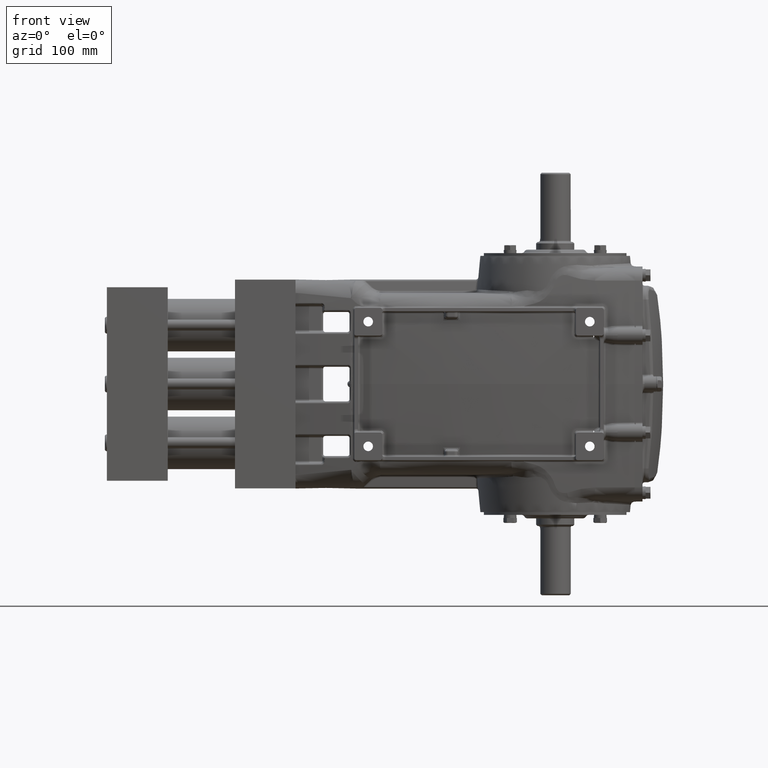
[diagram: clean part render]
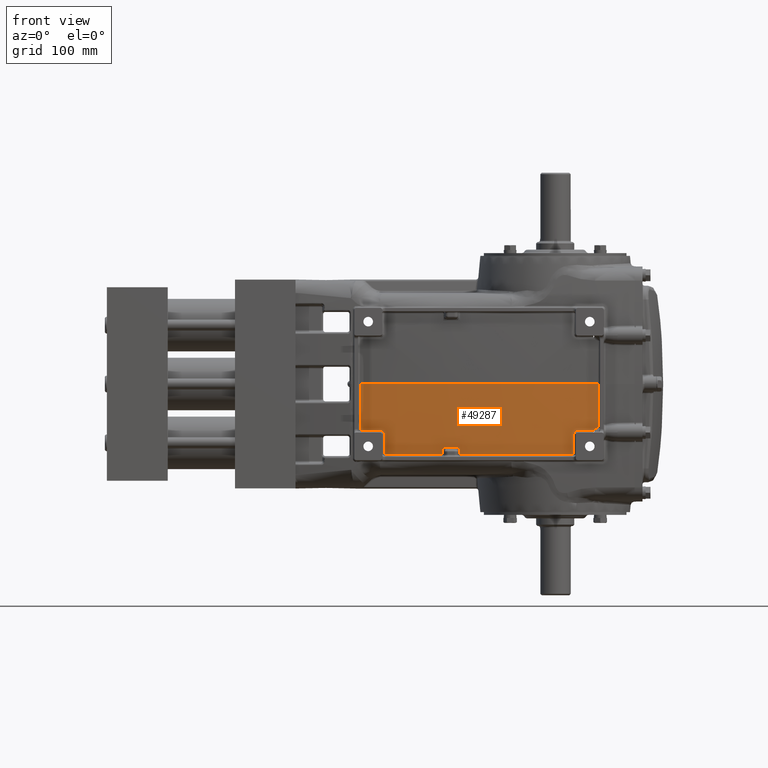
[diagram: same view with one face highlighted and labeled with its STEP entity id]
A machine part, front view. The second image highlights one B-rep face of the part: STEP entity #49287.
In plain terms, the highlighted face is a freeform B-spline surface patch.
Its self-contained STEP definition (entity closure, byte-faithful):
#25 = CARTESIAN_POINT ( 'NONE',  ( -15.30011397790427985, -11.44497907845690854, -9.795701932413749091 ) ) ;
#75 = VERTEX_POINT ( 'NONE', #16895 ) ;
#341 = CARTESIAN_POINT ( 'NONE',  ( -2.155851453469272538, -11.75350330850286085, -9.374461174855936108 ) ) ;
#613 = CARTESIAN_POINT ( 'NONE',  ( -5.734409042002613255, -12.40080583490211019, -2.691688546195931675 ) ) ;
#641 = CARTESIAN_POINT ( 'NONE',  ( -8.820698497350521805, -12.25508370766496924, -7.516246092718290583 ) ) ;
#1262 = CARTESIAN_POINT ( 'NONE',  ( -8.820698497350539569, -12.19028921542944666, -8.100683595711938523 ) ) ;
#1562 = CARTESIAN_POINT ( 'NONE',  ( -15.30011397790426209, -12.02828449493803653, -3.729488559111926893 ) ) ;
#1880 = CARTESIAN_POINT ( 'NONE',  ( -15.30011397790427985, -12.12481097944904285, -0.2832288182468694071 ) ) ;
#2195 = CARTESIAN_POINT ( 'NONE',  ( -2.349973212028919622, -12.23336137557311076, -4.639603684136446304 ) ) ;
#2498 = CARTESIAN_POINT ( 'NONE',  ( -2.220558706322482756, -12.10330371781391712, -6.244892509886193821 ) ) ;
#2820 = CARTESIAN_POINT ( 'NONE',  ( -8.820698497350555556, -12.62774570692185350, -1.964061495921458844 ) ) ;
#2878 = CARTESIAN_POINT ( 'NONE',  ( -5.578408351228389961, -12.40303184743050480, -2.633408173276915676 ) ) ;
#2935 = CARTESIAN_POINT ( 'NONE',  ( -4.657395821290998938, -12.39867769571685407, -2.586632401729381581 ) ) ;
#3014 = CARTESIAN_POINT ( 'NONE',  ( -17.58183735192217867, -11.49283733575563993, -2.633457776029218156 ) ) ;
#3410 = EDGE_CURVE ( 'NONE', #41082, #40689, #59980, .T. ) ;
#3811 = CARTESIAN_POINT ( 'NONE',  ( -16.71732369367113691, -11.61877150563516103, -2.657090287576964194 ) ) ;
#4116 = CARTESIAN_POINT ( 'NONE',  ( -16.74603318353143067, -11.61511174794887502, -2.645681255259437759 ) ) ;
#4394 = CARTESIAN_POINT ( 'NONE',  ( -5.814275709698907946, -12.33833289011516676, -4.009067684533873965 ) ) ;
#4726 = CARTESIAN_POINT ( 'NONE',  ( -16.60666011583654011, -11.63003688281277270, -2.771421394848510911 ) ) ;
#4908 = CARTESIAN_POINT ( 'NONE',  ( -2.155851453469277867, -12.37521014431466071, -0.2617201313986859956 ) ) ;
#5047 = CARTESIAN_POINT ( 'NONE',  ( -21.64131179470609467, -10.12996243561039300, -9.786800326190538968 ) ) ;
#5160 = VERTEX_POINT ( 'NONE', #17429 ) ;
#5359 = CARTESIAN_POINT ( 'NONE',  ( -21.64131179470613020, -10.35318565719905237, -8.030208900442749709 ) ) ;
#5644 = CARTESIAN_POINT ( 'NONE',  ( -5.675979143677897021, -12.40226191239490383, -2.654394645030111022 ) ) ;
#5646 = EDGE_CURVE ( 'NONE', #5160, #8734, #55219, .T. ) ;
#5676 = CARTESIAN_POINT ( 'NONE',  ( -2.220558706322502296, -11.91031965879874299, -8.136625690299220892 ) ) ;
#5728 = CARTESIAN_POINT ( 'NONE',  ( -15.48078178085614987, -11.72885088615122839, -4.009119313203882484 ) ) ;
#5959 = CARTESIAN_POINT ( 'NONE',  ( -5.654707048150501514, -12.40260100707920365, -2.645560017094310101 ) ) ;
#5984 = CARTESIAN_POINT ( 'NONE',  ( -2.349973212028927616, -12.05420217435858277, -6.832522365018273369 ) ) ;
#6296 = CARTESIAN_POINT ( 'NONE',  ( -2.220558706322473430, -12.17258246696452240, -5.413705272760017451 ) ) ;
#6606 = CARTESIAN_POINT ( 'NONE',  ( -2.155851453469282308, -12.37259855220085214, -0.7392324407370322037 ) ) ;
#6914 = CARTESIAN_POINT ( 'NONE',  ( -21.64131179470604849, -10.53882562471727802, -6.188065023527709485 ) ) ;
#7229 = CARTESIAN_POINT ( 'NONE',  ( -8.820698497350498712, -12.38079281970061984, -6.225699120453859869 ) ) ;
#7257 = CARTESIAN_POINT ( 'NONE',  ( -5.814275709698907946, -12.33833289011516676, -4.009067684533873965 ) ) ;
#7299 = CARTESIAN_POINT ( 'NONE',  ( -17.96140901744291085, -11.48162414815780785, 6.222606604880411818E-16 ) ) ;
#7426 = CARTESIAN_POINT ( 'NONE',  ( -17.96142184308066447, -11.43268835896925850, -2.633461050662142977 ) ) ;
#7539 = CARTESIAN_POINT ( 'NONE',  ( -2.285265959175719619, -12.35569060813966757, -1.924953776098369485 ) ) ;
#7773 = CARTESIAN_POINT ( 'NONE',  ( -16.58553356226408226, -11.62910905745565593, -2.869281754821064290 ) ) ;
#8280 = CARTESIAN_POINT ( 'NONE',  ( -4.698406014597475533, -12.39782582046681725, -2.623396351544327043 ) ) ;
#8524 = CARTESIAN_POINT ( 'NONE',  ( -16.58707027155464431, -11.63014708402498343, -2.838203157779700891 ) ) ;
#8611 = CARTESIAN_POINT ( 'NONE',  ( -13.26374593942000679, -11.98953872370508122, -3.616051193212727721 ) ) ;
#8734 = VERTEX_POINT ( 'NONE', #55537 ) ;
#8920 = B_SPLINE_CURVE_WITH_KNOTS ( 'NONE', 3,
 ( #26400, #50426, #26081, #20999 ),
 .UNSPECIFIED., .F., .F.,
 ( 4, 4 ),
 ( 0.000000000000000000, 1.000000000000000000 ),
 .UNSPECIFIED. ) ;
#9414 = B_SPLINE_CURVE_WITH_KNOTS ( 'NONE', 3,
 ( #14387, #46973, #57390, #13457 ),
 .UNSPECIFIED., .F., .F.,
 ( 4, 4 ),
 ( 0.000000000000000000, 0.02506584408557437776 ),
 .UNSPECIFIED. ) ;
#10390 = CARTESIAN_POINT ( 'NONE',  ( -5.808263771253985297, -12.39585561723757579, -2.815778172814599856 ) ) ;
#10415 = CARTESIAN_POINT ( 'NONE',  ( -15.30011397790427097, -11.72972334447101694, -7.482576476895471451 ) ) ;
#10558 = EDGE_CURVE ( 'NONE', #50474, #34545, #21426, .T. ) ;
#11027 = CARTESIAN_POINT ( 'NONE',  ( -2.285265959175703632, -11.75897061864652215, -9.374025331952717366 ) ) ;
#11310 = CARTESIAN_POINT ( 'NONE',  ( -5.578408351228389961, -12.40303184743050480, -2.633408173276915676 ) ) ;
#11337 = CARTESIAN_POINT ( 'NONE',  ( -2.220558706322497855, -12.37530055370917026, -0.7394822644501427567 ) ) ;
#11627 = CARTESIAN_POINT ( 'NONE',  ( -12.28096622908845958, -12.07895697645320077, -3.616044454389348850 ) ) ;
#11645 = CARTESIAN_POINT ( 'NONE',  ( -2.349973212028929392, -12.38070455672580295, -0.7399819118763637515 ) ) ;
#11968 = CARTESIAN_POINT ( 'NONE',  ( -2.285265959175712069, -12.05147202689562214, -6.832793557027403430 ) ) ;
#12284 = CARTESIAN_POINT ( 'NONE',  ( -21.64131179470606980, -10.65642422315710647, -4.668920579875790011 ) ) ;
#12437 = CARTESIAN_POINT ( 'NONE',  ( -16.58554113562181342, -11.59525901640059153, -3.629334840244932803 ) ) ;
#12580 = CARTESIAN_POINT ( 'NONE',  ( -12.28096813139740284, -12.06520829843644016, -3.878095849180120069 ) ) ;
#12599 = CARTESIAN_POINT ( 'NONE',  ( -21.64131179470601296, -10.80524153602839021, -0.8149290258095023276 ) ) ;
#12943 = CARTESIAN_POINT ( 'NONE',  ( -11.20500858982279979, -12.14332133350450604, -4.009084545783796472 ) ) ;
#13089 = ORIENTED_EDGE ( 'NONE', *, *, #18958, .T. ) ;
#13457 = CARTESIAN_POINT ( 'NONE',  ( -12.28096622908845958, -12.07895697645320077, -3.616044454389348850 ) ) ;
#13555 = CARTESIAN_POINT ( 'NONE',  ( -6.893765475275827725, -12.33591216973435323, -4.009068041970368590 ) ) ;
#14203 = CARTESIAN_POINT ( 'NONE',  ( -16.64415944417980597, -11.62701847969445446, -2.712919804652284661 ) ) ;
#14387 = CARTESIAN_POINT ( 'NONE',  ( -13.26374593942000679, -11.98953872370508122, -3.616051193212727721 ) ) ;
#14538 = CARTESIAN_POINT ( 'NONE',  ( -2.220558706322492970, -11.66227087428507758, -10.04577710926009182 ) ) ;
#14570 = ORIENTED_EDGE ( 'NONE', *, *, #17505, .T. ) ;
#14848 = CARTESIAN_POINT ( 'NONE',  ( -2.349973212028924507, -11.66767927644232117, -10.04577710926009182 ) ) ;
#14903 = CARTESIAN_POINT ( 'NONE',  ( -16.58554596764888700, -11.57374207269790034, -4.009132247748159017 ) ) ;
#15130 = CARTESIAN_POINT ( 'NONE',  ( -5.722547588352650649, -12.40118983010266440, -2.681924243328158042 ) ) ;
#15158 = CARTESIAN_POINT ( 'NONE',  ( -8.820698497350520029, -11.93809938430440987, -10.04577710926007583 ) ) ;
#15462 = CARTESIAN_POINT ( 'NONE',  ( -2.285265959175708961, -11.66497507536369937, -10.04577710926009182 ) ) ;
#15759 = CARTESIAN_POINT ( 'NONE',  ( -2.220558706322504516, -11.97561225462063383, -7.550589100857566294 ) ) ;
#15777 = EDGE_CURVE ( 'NONE', #31555, #17471, #26852, .T. ) ;
#16072 = CARTESIAN_POINT ( 'NONE',  ( -8.820698497350496936, -12.65090470755751717, -0.7649642831874112758 ) ) ;
#16388 = CARTESIAN_POINT ( 'NONE',  ( -2.285265959175710293, -12.33181225505272494, -2.708566069750672600 ) ) ;
#16536 = CARTESIAN_POINT ( 'NONE',  ( -4.438385039138968757, -12.40053363330852676, -2.449077410714803449 ) ) ;
#16545 = ORIENTED_EDGE ( 'NONE', *, *, #55576, .T. ) ;
#16692 = CARTESIAN_POINT ( 'NONE',  ( -2.155851453469272538, -12.22527011236534378, -4.639310515179054129 ) ) ;
#16895 = CARTESIAN_POINT ( 'NONE',  ( -13.26374593942000679, -11.98953872370508122, -3.616051193212727721 ) ) ;
#17010 = CARTESIAN_POINT ( 'NONE',  ( -2.349973212028936054, -12.35838422297909567, -1.925340981245132754 ) ) ;
#17040 = CARTESIAN_POINT ( 'NONE',  ( -5.814275331094473032, -12.39369679939118463, -2.869235462077895704 ) ) ;
#17085 = CARTESIAN_POINT ( 'NONE',  ( -17.96142184308066447, -11.43268835896925850, -2.633461050662142977 ) ) ;
#17325 = CARTESIAN_POINT ( 'NONE',  ( -2.349973212028934277, -12.37233524949535024, -1.271907088491667448 ) ) ;
#17429 = CARTESIAN_POINT ( 'NONE',  ( -12.28096916369352343, -12.05778752961060363, -4.009091750255389108 ) ) ;
#17471 = VERTEX_POINT ( 'NONE', #2878 ) ;
#17505 = EDGE_CURVE ( 'NONE', #34545, #55483, #44766, .T. ) ;
#17677 = EDGE_CURVE ( 'NONE', #42288, #5160, #22914, .T. ) ;
#17943 = CARTESIAN_POINT ( 'NONE',  ( -21.64131179470609112, -10.80851959794422434, 1.301789904605454270E-14 ) ) ;
#18000 = CARTESIAN_POINT ( 'NONE',  ( -16.76821817530811387, -11.61218166748404634, -2.639396831441880309 ) ) ;
#18053 = CARTESIAN_POINT ( 'NONE',  ( -4.487237362532711771, -12.40042177839999660, -2.473840061928064937 ) ) ;
#18599 = CARTESIAN_POINT ( 'NONE',  ( -16.58553342115533269, -11.62974180661300849, -2.853661428704625802 ) ) ;
#18913 = CARTESIAN_POINT ( 'NONE',  ( -16.66599718982151757, -11.62476096469725206, -2.691205871054131116 ) ) ;
#18958 = EDGE_CURVE ( 'NONE', #40689, #28556, #52261, .T. ) ;
#19236 = CARTESIAN_POINT ( 'NONE',  ( -15.30011397790424788, -11.50908330425855830, -9.330223120179205409 ) ) ;
#19529 = CARTESIAN_POINT ( 'NONE',  ( -5.790421869757397921, -12.39790369134867909, -2.764743968394221429 ) ) ;
#19557 = CARTESIAN_POINT ( 'NONE',  ( -2.285265959175709405, -11.83524800141881528, -8.780550963363717543 ) ) ;
#19607 = CARTESIAN_POINT ( 'NONE',  ( -13.26374929207214493, -11.96836890269487164, -4.009099260313161217 ) ) ;
#19677 = ORIENTED_EDGE ( 'NONE', *, *, #48368, .T. ) ;
#20183 = CARTESIAN_POINT ( 'NONE',  ( -2.155851453469288526, -11.97287233841431586, -7.550925797015794139 ) ) ;
#20498 = CARTESIAN_POINT ( 'NONE',  ( -21.64131179470607336, -10.41700347573581453, -7.448906861072648766 ) ) ;
#20540 = ORIENTED_EDGE ( 'NONE', *, *, #44395, .T. ) ;
#20802 = CARTESIAN_POINT ( 'NONE',  ( -2.349973212028914293, -12.10874468059600773, -6.244516168916932841 ) ) ;
#20999 = CARTESIAN_POINT ( 'NONE',  ( -4.438386436175663086, -12.44285824087143766, 8.307133097801747765E-16 ) ) ;
#21118 = CARTESIAN_POINT ( 'NONE',  ( -8.820698497350520029, -12.65374285541260768, -0.2726334060063855813 ) ) ;
#21426 = B_SPLINE_CURVE_WITH_KNOTS ( 'NONE', 3,
 ( #7426, #3014, #54863, #50430 ),
 .UNSPECIFIED., .F., .F.,
 ( 4, 4 ),
 ( 0.000000000000000000, 0.02928519298519093386 ),
 .UNSPECIFIED. ) ;
#21441 = CARTESIAN_POINT ( 'NONE',  ( -2.220558706322496079, -12.04874187943266328, -6.833064749036533492 ) ) ;
#21746 = CARTESIAN_POINT ( 'NONE',  ( -8.820698497350566214, -12.60340878282694277, -2.746519947525800642 ) ) ;
#21820 = CARTESIAN_POINT ( 'NONE',  ( -17.96141371060206282, -11.46531234447554404, -1.756019466418914821 ) ) ;
#22067 = CARTESIAN_POINT ( 'NONE',  ( -21.64131179470608757, -10.79570752683036616, -1.371080488539591968 ) ) ;
#22385 = CARTESIAN_POINT ( 'NONE',  ( -2.220558706322493414, -12.37791434539328073, -0.2618260855210908233 ) ) ;
#22914 = B_SPLINE_CURVE_WITH_KNOTS ( 'NONE', 3,
 ( #11627, #54958, #12580, #40401 ),
 .UNSPECIFIED., .F., .F.,
 ( 4, 4 ),
 ( 6.938893903907228378E-17, 0.009997877322231157188 ),
 .UNSPECIFIED. ) ;
#23038 = ORIENTED_EDGE ( 'NONE', *, *, #55249, .T. ) ;
#23340 = CARTESIAN_POINT ( 'NONE',  ( -10.12796075864818945, -12.21224781643305057, -4.009078708508508448 ) ) ;
#23370 = CARTESIAN_POINT ( 'NONE',  ( -16.62135692056476799, -11.62903192171308930, -2.744094817158740263 ) ) ;
#23735 = VERTEX_POINT ( 'NONE', #30367 ) ;
#23740 = CARTESIAN_POINT ( 'NONE',  ( -16.82139843863660644, -11.60479057090567068, -2.633451682630481017 ) ) ;
#23988 = CARTESIAN_POINT ( 'NONE',  ( -16.60997338760573783, -11.62984299591370529, -2.764453734349010539 ) ) ;
#24097 = ORIENTED_EDGE ( 'NONE', *, *, #15777, .T. ) ;
#24319 = CARTESIAN_POINT ( 'NONE',  ( -2.155851453469275647, -11.69279052384617046, -9.813772193046863990 ) ) ;
#24630 = CARTESIAN_POINT ( 'NONE',  ( -15.30011397790431005, -11.66541718908487546, -8.065446248077345004 ) ) ;
#24940 = CARTESIAN_POINT ( 'NONE',  ( -2.349973212028936054, -11.98109208703326800, -7.549915708541110604 ) ) ;
#25121 = CARTESIAN_POINT ( 'NONE',  ( -17.96142184308066447, -11.43268835896925850, -2.633461050662142977 ) ) ;
#25543 = CARTESIAN_POINT ( 'NONE',  ( -5.814275331094473032, -12.39369679939118463, -2.869235462077895704 ) ) ;
#25573 = CARTESIAN_POINT ( 'NONE',  ( -2.155851453469246781, -12.28152835788367447, -3.677257184034957049 ) ) ;
#25883 = CARTESIAN_POINT ( 'NONE',  ( -21.64131179470609112, -10.80851959794422434, -0.2938242304873521227 ) ) ;
#26081 = CARTESIAN_POINT ( 'NONE',  ( -8.966321366949120630, -12.51183558701017517, 2.505936219533671247E-14 ) ) ;
#26201 = CARTESIAN_POINT ( 'NONE',  ( -8.820698497350509371, -12.50307014916529447, -4.649375982716229316 ) ) ;
#26400 = CARTESIAN_POINT ( 'NONE',  ( -17.96140901744291085, -11.48162414815780785, 6.222606604880411818E-16 ) ) ;
#26525 = CARTESIAN_POINT ( 'NONE',  ( -15.30011397790427097, -11.92010205185752270, -5.404061326588741387 ) ) ;
#26831 = CARTESIAN_POINT ( 'NONE',  ( -2.220558706322503184, -12.35299699330023948, -1.924566570951606215 ) ) ;
#26852 = B_SPLINE_CURVE_WITH_KNOTS ( 'NONE', 3,
 ( #25543, #29357, #39440, #10390, #38823, #35020, #29675, #19529, #44530, #35328, #29975, #613, #15130, #59381, #54624, #53391, #5644, #5959, #34408, #58143, #48967, #11310 ),
 .UNSPECIFIED., .F., .F.,
 ( 4, 2, 2, 2, 2, 2, 2, 2, 2, 2, 4 ),
 ( 0.000000000000000000, 0.001170230795047751127, 0.001755346192571635797, 0.002340461590095520468, 0.003510692385143295881, 0.004680923180191071294, 0.005851153975238845839, 0.006436269372762768240, 0.007021384770286690641, 0.008191615565334531973, 0.009361846360382375040 ),
 .UNSPECIFIED. ) ;
#27219 = EDGE_CURVE ( 'NONE', #17471, #41082, #37804, .T. ) ;
#27577 = CARTESIAN_POINT ( 'NONE',  ( -4.667917380158449703, -12.39848702573900141, -2.595409234286697675 ) ) ;
#27607 = CARTESIAN_POINT ( 'NONE',  ( -16.58553699591125863, -11.61371215737062457, -3.249376453830433942 ) ) ;
#27817 = CARTESIAN_POINT ( 'NONE',  ( -16.80592831836296241, -11.60701028592554351, -2.633451561824138309 ) ) ;
#28556 = VERTEX_POINT ( 'NONE', #46772 ) ;
#28924 = CARTESIAN_POINT ( 'NONE',  ( -2.349973212028924507, -12.38332274755052431, -5.900791666314808552E-15 ) ) ;
#29357 = CARTESIAN_POINT ( 'NONE',  ( -5.814275326496233021, -12.39432730961419438, -2.853669760522055565 ) ) ;
#29386 = CARTESIAN_POINT ( 'NONE',  ( -2.349973212028925396, -11.83799083888007253, -8.780241008971938044 ) ) ;
#29675 = CARTESIAN_POINT ( 'NONE',  ( -5.799287238907021802, -12.39704604148862899, -2.786150692338192680 ) ) ;
#29966 = B_SPLINE_CURVE_WITH_KNOTS ( 'NONE', 3,
 ( #14903, #5728, #39209, #19607 ),
 .UNSPECIFIED., .F., .F.,
 ( 4, 4 ),
 ( 0.000000000000000000, 0.08500869428581230014 ),
 .UNSPECIFIED. ) ;
#29975 = CARTESIAN_POINT ( 'NONE',  ( -5.756147419824959144, -12.39994610543636178, -2.713445904319685464 ) ) ;
#30003 = CARTESIAN_POINT ( 'NONE',  ( -8.820698497350536016, -12.11227458500572318, -8.749245569794030786 ) ) ;
#30300 = CARTESIAN_POINT ( 'NONE',  ( -2.285265959175718731, -11.91306445837355277, -8.136273316822876467 ) ) ;
#30367 = CARTESIAN_POINT ( 'NONE',  ( -16.58554596764888700, -11.57374207269790034, -4.009132247748159017 ) ) ;
#30613 = CARTESIAN_POINT ( 'NONE',  ( -2.285265959175718731, -12.36963713032692347, -1.271576510491507550 ) ) ;
#30930 = CARTESIAN_POINT ( 'NONE',  ( -2.285265959175709405, -12.38061854647190074, -0.2619320396434957066 ) ) ;
#31243 = CARTESIAN_POINT ( 'NONE',  ( -8.820698497350505818, -12.44872553631750378, -5.408835557366600710 ) ) ;
#31245 = B_SPLINE_CURVE_WITH_KNOTS ( 'NONE', 3,
 ( #47515, #60817, #37087, #8611 ),
 .UNSPECIFIED., .F., .F.,
 ( 4, 4 ),
 ( 1.942890293094023699E-16, 0.009997897390823021896 ),
 .UNSPECIFIED. ) ;
#31555 = VERTEX_POINT ( 'NONE', #41433 ) ;
#31563 = CARTESIAN_POINT ( 'NONE',  ( -2.220558706322462328, -12.28421854567126026, -3.677514481449129846 ) ) ;
#31829 = VERTEX_POINT ( 'NONE', #40416 ) ;
#31873 = CARTESIAN_POINT ( 'NONE',  ( -15.30011397790427985, -12.11260709935474900, -1.338022688523618386 ) ) ;
#31961 = CARTESIAN_POINT ( 'NONE',  ( -5.578408351228389961, -12.40303184743050480, -2.633408173276915676 ) ) ;
#32305 = CARTESIAN_POINT ( 'NONE',  ( -4.707826274591061733, -12.39756490727142690, -2.633408445068508463 ) ) ;
#32559 = CARTESIAN_POINT ( 'NONE',  ( -16.73869373910920189, -11.61605976961182307, -2.648289797643024190 ) ) ;
#33074 = CARTESIAN_POINT ( 'NONE',  ( -5.814275443375847452, -12.37830078665801103, -3.249324048445274560 ) ) ;
#33485 = CARTESIAN_POINT ( 'NONE',  ( -16.61730883142423210, -11.62934166807160707, -2.750807953098193703 ) ) ;
#33527 = ORIENTED_EDGE ( 'NONE', *, *, #51976, .T. ) ;
#33550 = ORIENTED_EDGE ( 'NONE', *, *, #43081, .F. ) ;
#33815 = CARTESIAN_POINT ( 'NONE',  ( -2.155851453469277423, -11.65956667320645757, -10.04577710926009182 ) ) ;
#33974 = CARTESIAN_POINT ( 'NONE',  ( -8.820698497350520029, -12.65374285541260768, -7.613123643899153952E-16 ) ) ;
#34126 = FACE_OUTER_BOUND ( 'NONE', #34390, .T. ) ;
#34390 = EDGE_LOOP ( 'NONE', ( #20540, #23038, #16545, #39571, #39753, #19677, #24097, #57899, #61091, #13089, #33550, #43270, #55189, #14570, #33527 ) ) ;
#34408 = CARTESIAN_POINT ( 'NONE',  ( -5.639878613856398992, -12.40277194567973496, -2.641027938767021688 ) ) ;
#34438 = CARTESIAN_POINT ( 'NONE',  ( -2.220558706322488085, -11.75623696357469150, -9.374243253404326737 ) ) ;
#34545 = VERTEX_POINT ( 'NONE', #23740 ) ;
#35020 = CARTESIAN_POINT ( 'NONE',  ( -5.801918162642100363, -12.39675080416057895, -2.793509117844862999 ) ) ;
#35044 = CARTESIAN_POINT ( 'NONE',  ( -8.820698497350502265, -12.03506978090127966, -9.352015265340156702 ) ) ;
#35328 = CARTESIAN_POINT ( 'NONE',  ( -5.766097440635924443, -12.39946465264702802, -2.725582099047809237 ) ) ;
#35356 = CARTESIAN_POINT ( 'NONE',  ( -2.285265959175713846, -12.37800255521748838, -0.7397320881632531986 ) ) ;
#35673 = CARTESIAN_POINT ( 'NONE',  ( -15.30011397790433669, -12.09775520703895602, -2.002782010597783824 ) ) ;
#35991 = CARTESIAN_POINT ( 'NONE',  ( -21.64131179470607691, -10.71059178432975934, -3.755218300529151954 ) ) ;
#36301 = CARTESIAN_POINT ( 'NONE',  ( -2.285265959175698303, -12.10602419920496331, -6.244704339401563331 ) ) ;
#36454 = CARTESIAN_POINT ( 'NONE',  ( -16.58553356226408226, -11.62910905745565593, -2.869281754821064290 ) ) ;
#36620 = CARTESIAN_POINT ( 'NONE',  ( -2.220558706322502740, -12.36693901115850025, -1.271245932491347874 ) ) ;
#37001 = EDGE_CURVE ( 'NONE', #31829, #50474, #56284, .T. ) ;
#37087 = CARTESIAN_POINT ( 'NONE',  ( -13.26374699722012451, -11.98284635525563324, -3.747086590047644883 ) ) ;
#37302 = CARTESIAN_POINT ( 'NONE',  ( -16.76078263783536215, -11.61317424119429731, -2.641241897834022634 ) ) ;
#37357 = CARTESIAN_POINT ( 'NONE',  ( -4.438385039138968757, -12.40053363330852676, -2.449077410714803449 ) ) ;
#37578 = CARTESIAN_POINT ( 'NONE',  ( -12.28096916369352343, -12.05778752961060363, -4.009091750255389108 ) ) ;
#37804 = B_SPLINE_CURVE_WITH_KNOTS ( 'NONE', 3,
 ( #31961, #46208, #55060, #41446 ),
 .UNSPECIFIED., .F., .F.,
 ( 4, 4 ),
 ( 0.000000000000000000, 0.02211340015105577039 ),
 .UNSPECIFIED. ) ;
#37900 = CARTESIAN_POINT ( 'NONE',  ( -16.58553356226408226, -11.62910905745565593, -2.869281754821064290 ) ) ;
#38217 = CARTESIAN_POINT ( 'NONE',  ( -16.63435396197776583, -11.62794701211789850, -2.724775699095787207 ) ) ;
#38400 = CARTESIAN_POINT ( 'NONE',  ( -2.285265959175708961, -12.38061854647190074, -5.952186459334057860E-15 ) ) ;
#38543 = CARTESIAN_POINT ( 'NONE',  ( -21.64131179470604138, -10.48718294005363916, -6.751164762279253218 ) ) ;
#38823 = CARTESIAN_POINT ( 'NONE',  ( -5.806399968551174240, -12.39615600936120821, -2.808312386648814218 ) ) ;
#38848 = CARTESIAN_POINT ( 'NONE',  ( -2.285265959175707184, -11.69822442077657776, -9.813594160922399112 ) ) ;
#39209 = CARTESIAN_POINT ( 'NONE',  ( -14.37350051582423838, -11.86038197658812088, -4.009108318091922918 ) ) ;
#39440 = CARTESIAN_POINT ( 'NONE',  ( -5.812749071361796638, -12.39494563075574618, -2.838363699798844841 ) ) ;
#39470 = CARTESIAN_POINT ( 'NONE',  ( -15.30011397790424610, -11.80087968312467339, -6.778283963192261119 ) ) ;
#39571 = ORIENTED_EDGE ( 'NONE', *, *, #17677, .T. ) ;
#39753 = ORIENTED_EDGE ( 'NONE', *, *, #5646, .T. ) ;
#39777 = CARTESIAN_POINT ( 'NONE',  ( -8.820698497350520029, -11.97263621576217041, -9.804603538636959215 ) ) ;
#40094 = CARTESIAN_POINT ( 'NONE',  ( -2.349973212028926728, -12.33450132958514445, -2.708941850718743272 ) ) ;
#40251 = CARTESIAN_POINT ( 'NONE',  ( -4.438386436175663974, -12.44285824087143588, -0.8165376980095109261 ) ) ;
#40401 = CARTESIAN_POINT ( 'NONE',  ( -12.28096916369352343, -12.05778752961060363, -4.009091750255389108 ) ) ;
#40416 = CARTESIAN_POINT ( 'NONE',  ( -17.96140901744291085, -11.48162414815780785, 6.222606604880411818E-16 ) ) ;
#40420 = CARTESIAN_POINT ( 'NONE',  ( -2.155851453469280532, -12.04601173196970620, -6.833335941045664441 ) ) ;
#40689 = VERTEX_POINT ( 'NONE', #62003 ) ;
#40726 = CARTESIAN_POINT ( 'NONE',  ( -2.285265959175703632, -12.23066428783718962, -4.639505961150648616 ) ) ;
#41042 = CARTESIAN_POINT ( 'NONE',  ( -2.155851453469266765, -12.10058323642286915, -6.245080680370824311 ) ) ;
#41082 = VERTEX_POINT ( 'NONE', #59912 ) ;
#41356 = CARTESIAN_POINT ( 'NONE',  ( -2.349973212028893865, -12.28959892124643360, -3.678029076277474552 ) ) ;
#41433 = CARTESIAN_POINT ( 'NONE',  ( -5.814275331094473032, -12.39369679939118463, -2.869235462077895704 ) ) ;
#41446 = CARTESIAN_POINT ( 'NONE',  ( -4.707826274591061733, -12.39756490727142690, -2.633408445068508463 ) ) ;
#42111 = CARTESIAN_POINT ( 'NONE',  ( -4.625232652272933009, -12.39919776025088716, -2.561217022510075658 ) ) ;
#42288 = VERTEX_POINT ( 'NONE', #59303 ) ;
#42736 = CARTESIAN_POINT ( 'NONE',  ( -4.688421036353138227, -12.39806121695164443, -2.613787791955301643 ) ) ;
#42949 = CARTESIAN_POINT ( 'NONE',  ( -11.74334290212451570, -12.10330869230441131, -4.009087921353007289 ) ) ;
#43081 = EDGE_CURVE ( 'NONE', #31829, #28556, #8920, .T. ) ;
#43167 = CARTESIAN_POINT ( 'NONE',  ( -15.30011397790427985, -12.12481097944904285, 5.544917873066535615E-15 ) ) ;
#43270 = ORIENTED_EDGE ( 'NONE', *, *, #37001, .T. ) ;
#43293 = CARTESIAN_POINT ( 'NONE',  ( -16.59320682775397060, -11.63050438767729844, -2.807609554183102762 ) ) ;
#43622 = CARTESIAN_POINT ( 'NONE',  ( -2.349973212028919622, -11.76170427371835103, -9.373807410501107995 ) ) ;
#43926 = CARTESIAN_POINT ( 'NONE',  ( -2.155851453469285861, -11.90757485922393144, -8.136978063775567094 ) ) ;
#44246 = CARTESIAN_POINT ( 'NONE',  ( -2.285265959175720063, -11.97835217082695181, -7.550252404699338449 ) ) ;
#44395 = EDGE_CURVE ( 'NONE', #23735, #61988, #29966, .T. ) ;
#44530 = CARTESIAN_POINT ( 'NONE',  ( -5.783188086505949066, -12.39844442741665098, -2.751205790464349654 ) ) ;
#44766 = B_SPLINE_CURVE_WITH_KNOTS ( 'NONE', 3,
 ( #56602, #27817, #48032, #18000, #37302, #4116, #32559, #3811, #52777, #61954, #18913, #14203, #38217, #23370, #33485, #23988, #4726, #51856, #43293, #8524, #18599, #37900 ),
 .UNSPECIFIED., .F., .F.,
 ( 4, 2, 2, 2, 2, 2, 2, 2, 2, 2, 4 ),
 ( 0.000000000000000000, 0.001174131697665231925, 0.001761197546497843876, 0.002348263395330456044, 0.003522395092995663900, 0.004696526790660872190, 0.005870658488326081781, 0.006457724337158680938, 0.007044790185991280963, 0.008218921883656481880, 0.009393053581321681930 ),
 .UNSPECIFIED. ) ;
#44873 = CARTESIAN_POINT ( 'NONE',  ( -15.30011397790436867, -12.07296425224308933, -2.784098044332857125 ) ) ;
#45178 = CARTESIAN_POINT ( 'NONE',  ( -2.285265959175688977, -12.17528975195817686, -5.413657530452238298 ) ) ;
#45492 = CARTESIAN_POINT ( 'NONE',  ( -21.64131179470622612, -10.75516021611798045, -2.821676141139911831 ) ) ;
#45806 = CARTESIAN_POINT ( 'NONE',  ( -15.30011397790426209, -11.97342693893182819, -4.659148281296010552 ) ) ;
#45872 = CARTESIAN_POINT ( 'NONE',  ( -17.96140901744291085, -11.48162414815781140, -0.8780478353440256400 ) ) ;
#46119 = CARTESIAN_POINT ( 'NONE',  ( -2.155851453469287193, -12.35030337846081316, -1.924179365804842945 ) ) ;
#46208 = CARTESIAN_POINT ( 'NONE',  ( -5.288206004963432072, -12.40281379970168985, -2.633408177355273327 ) ) ;
#46772 = CARTESIAN_POINT ( 'NONE',  ( -4.438386436175663086, -12.44285824087143766, 8.307133097801747765E-16 ) ) ;
#46973 = CARTESIAN_POINT ( 'NONE',  ( -12.93634269212559218, -12.02139732818265294, -3.616048795176231678 ) ) ;
#47515 = CARTESIAN_POINT ( 'NONE',  ( -13.26374929207214493, -11.96836890269487164, -4.009099260313161217 ) ) ;
#48032 = CARTESIAN_POINT ( 'NONE',  ( -16.79070284448851069, -11.60913421741140006, -2.634958507792322990 ) ) ;
#48368 = EDGE_CURVE ( 'NONE', #8734, #31555, #48489, .T. ) ;
#48489 = B_SPLINE_CURVE_WITH_KNOTS ( 'NONE', 3,
 ( #7257, #52045, #33074, #17040 ),
 .UNSPECIFIED., .F., .F.,
 ( 4, 4 ),
 ( 1.387778780781445676E-17, 0.02898646123601396341 ),
 .UNSPECIFIED. ) ;
#48687 = CARTESIAN_POINT ( 'NONE',  ( -2.220558706322492970, -11.83250516395756158, -8.780860917755495265 ) ) ;
#48967 = CARTESIAN_POINT ( 'NONE',  ( -5.593987099549387665, -12.40304355274830250, -2.633408173057983692 ) ) ;
#49287 = ADVANCED_FACE ( 'NONE', ( #34126 ), #52482, .F. ) ;
#49305 = CARTESIAN_POINT ( 'NONE',  ( -8.820698497350505818, -12.32721692065445218, -6.805403164105268132 ) ) ;
#49667 = CARTESIAN_POINT ( 'NONE',  ( -13.26374929207214493, -11.96836890269487164, -4.009099260313161217 ) ) ;
#49918 = CARTESIAN_POINT ( 'NONE',  ( -8.820698497350495160, -12.55861770000506183, -3.703758817694700944 ) ) ;
#50232 = CARTESIAN_POINT ( 'NONE',  ( -21.64131179470608757, -10.60411906185628617, -5.399287095810881176 ) ) ;
#50426 = CARTESIAN_POINT ( 'NONE',  ( -13.49077321613305003, -12.19005461824755265, 2.138533143211187579E-14 ) ) ;
#50430 = CARTESIAN_POINT ( 'NONE',  ( -16.82139843863660644, -11.60479057090567068, -2.633451682630481017 ) ) ;
#50474 = VERTEX_POINT ( 'NONE', #25121 ) ;
#50546 = CARTESIAN_POINT ( 'NONE',  ( -2.349973212028904967, -12.17799703695183311, -5.413609788144460033 ) ) ;
#50866 = CARTESIAN_POINT ( 'NONE',  ( -2.155851453469277867, -12.32643410598789124, -2.707814507814531257 ) ) ;
#51177 = CARTESIAN_POINT ( 'NONE',  ( -2.220558706322492970, -12.37791434539328073, -6.003581252353306379E-15 ) ) ;
#51856 = CARTESIAN_POINT ( 'NONE',  ( -16.59776613208828522, -11.63045098770262520, -2.792751531202443793 ) ) ;
#51910 = CARTESIAN_POINT ( 'NONE',  ( -4.534767836002266073, -12.40016163511003100, -2.500623379743935892 ) ) ;
#51976 = EDGE_CURVE ( 'NONE', #55483, #23735, #58845, .T. ) ;
#52045 = CARTESIAN_POINT ( 'NONE',  ( -5.814275575268174734, -12.35984848745556874, -3.629276353741744732 ) ) ;
#52261 = B_SPLINE_CURVE_WITH_KNOTS ( 'NONE', 3,
 ( #16536, #59556, #40251, #60506 ),
 .UNSPECIFIED., .F., .F.,
 ( 4, 4 ),
 ( 0.000000000000000000, 0.06222008268736683306 ),
 .UNSPECIFIED. ) ;
#52482 = B_SPLINE_SURFACE_WITH_KNOTS ( 'NONE', 3, 3, ( 
 ( #54342, #58472, #15158, #14848, #15462, #14538, #33815 ),
 ( #5047, #25, #39777, #53419, #38848, #53105, #24319 ),
 ( #58170, #19236, #35044, #43622, #11027, #34438, #341 ),
 ( #53726, #54027, #30003, #29386, #19557, #48687, #59085 ),
 ( #5359, #24630, #1262, #57859, #30300, #5676, #43926 ),
 ( #20498, #10415, #641, #24940, #44246, #15759, #20183 ),
 ( #38543, #39470, #49305, #5984, #11968, #21441, #40420 ),
 ( #6914, #55295, #7229, #20802, #36301, #2498, #41042 ),
 ( #50232, #26525, #31243, #50546, #45178, #6296, #55604 ),
 ( #12284, #45806, #26201, #2195, #40726, #60032, #16692 ),
 ( #35991, #1562, #49918, #41356, #59722, #31563, #25573 ),
 ( #45492, #44873, #21746, #40094, #16388, #54651, #50866 ),
 ( #60350, #35673, #2820, #17010, #7539, #26831, #46119 ),
 ( #22067, #31873, #60662, #17325, #30613, #36620, #55922 ),
 ( #12599, #59407, #16072, #11645, #35356, #11337, #6606 ),
 ( #25883, #1880, #21118, #54975, #30930, #22385, #4908 ),
 ( #17943, #43167, #33974, #28924, #38400, #51177, #52650 ) ),
 .UNSPECIFIED., .F., .F., .F.,
 ( 4, 1, 1, 1, 1, 1, 1, 1, 1, 1, 1, 1, 1, 1, 4 ),
 ( 4, 3, 4 ),
 ( 0.6416899016319266291, 0.6680709144412995126, 0.6910511929030633826, 0.7070270417424607823, 0.7380269954074184513, 0.7537315596691966935, 0.7829012457735833319, 0.7996549019161131033, 0.8403417066807266078, 0.8632468234832121334, 0.8997714546634835164, 0.9419247260028263957, 0.9467756368356592400, 0.9704551915184829181, 1.000000000000000000 ),
 ( 0.000000000000000000, 1.000000000000000000, 1.010000000000000009 ),
 .UNSPECIFIED. ) ;
#52650 = CARTESIAN_POINT ( 'NONE',  ( -2.155851453469277423, -12.37521014431466071, -6.054976045372554899E-15 ) ) ;
#52777 = CARTESIAN_POINT ( 'NONE',  ( -16.70379509981516364, -11.62042301508500408, -2.664278630473034148 ) ) ;
#53105 = CARTESIAN_POINT ( 'NONE',  ( -2.220558706322491194, -11.69550747231137322, -9.813683176984632439 ) ) ;
#53391 = CARTESIAN_POINT ( 'NONE',  ( -5.682927753359806822, -12.40213485307880781, -2.657685429304641911 ) ) ;
#53419 = CARTESIAN_POINT ( 'NONE',  ( -2.349973212028922731, -11.70094136924178230, -9.813505144860167562 ) ) ;
#53726 = CARTESIAN_POINT ( 'NONE',  ( -21.64131179470613020, -10.27477860406447085, -8.687254691438219822 ) ) ;
#54027 = CARTESIAN_POINT ( 'NONE',  ( -15.30011397790430827, -11.58720634730572385, -8.718250130616125304 ) ) ;
#54342 = CARTESIAN_POINT ( 'NONE',  ( -21.64131179470609112, -10.09287612683603008, -10.04577710926004208 ) ) ;
#54624 = CARTESIAN_POINT ( 'NONE',  ( -5.696536338848173564, -12.40185220982645298, -2.664969661778525900 ) ) ;
#54651 = CARTESIAN_POINT ( 'NONE',  ( -2.220558706322494302, -12.32912318052030720, -2.708190288782601929 ) ) ;
#54863 = CARTESIAN_POINT ( 'NONE',  ( -17.20182291393424023, -11.55020573854455357, -2.633454653369547316 ) ) ;
#54958 = CARTESIAN_POINT ( 'NONE',  ( -12.28096715480223011, -12.07226474029979357, -3.747079594199890451 ) ) ;
#54975 = CARTESIAN_POINT ( 'NONE',  ( -2.349973212028924952, -12.38332274755052431, -0.2620379937659005343 ) ) ;
#55060 = CARTESIAN_POINT ( 'NONE',  ( -4.998008472576798589, -12.40099146455934864, -2.633408267973377459 ) ) ;
#55189 = ORIENTED_EDGE ( 'NONE', *, *, #10558, .T. ) ;
#55219 = B_SPLINE_CURVE_WITH_KNOTS ( 'NONE', 3,
 ( #37578, #42949, #12943, #23340, #56266, #61930, #13555, #4394 ),
 .UNSPECIFIED., .F., .F.,
 ( 4, 2, 2, 4 ),
 ( 0.1100862934247376496, 0.1512149560370461276, 0.1923436186493545919, 0.2746009438739716035 ),
 .UNSPECIFIED. ) ;
#55249 = EDGE_CURVE ( 'NONE', #61988, #75, #31245, .T. ) ;
#55295 = CARTESIAN_POINT ( 'NONE',  ( -15.30011397790424610, -11.85348897497957488, -6.206882071990785121 ) ) ;
#55483 = VERTEX_POINT ( 'NONE', #7773 ) ;
#55537 = CARTESIAN_POINT ( 'NONE',  ( -5.814275709698907946, -12.33833289011516676, -4.009067684533873965 ) ) ;
#55576 = EDGE_CURVE ( 'NONE', #75, #42288, #9414, .T. ) ;
#55604 = CARTESIAN_POINT ( 'NONE',  ( -2.155851453469257439, -12.16987518197086438, -5.413753015067796603 ) ) ;
#55922 = CARTESIAN_POINT ( 'NONE',  ( -2.155851453469287193, -12.36424089199007348, -1.270915354491187976 ) ) ;
#56266 = CARTESIAN_POINT ( 'NONE',  ( -9.589233246240931763, -12.24116612526059988, -4.009076246432642598 ) ) ;
#56284 = B_SPLINE_CURVE_WITH_KNOTS ( 'NONE', 3,
 ( #7299, #45872, #21820, #17085 ),
 .UNSPECIFIED., .F., .F.,
 ( 4, 4 ),
 ( 0.000000000000000000, 0.06690407850567986481 ),
 .UNSPECIFIED. ) ;
#56602 = CARTESIAN_POINT ( 'NONE',  ( -16.82139843863660644, -11.60479057090567068, -2.633451682630481017 ) ) ;
#57390 = CARTESIAN_POINT ( 'NONE',  ( -12.60874302683754244, -12.05120399685769605, -3.616046548859178866 ) ) ;
#57859 = CARTESIAN_POINT ( 'NONE',  ( -2.349973212028934721, -11.91580925794836610, -8.135920943346530265 ) ) ;
#57899 = ORIENTED_EDGE ( 'NONE', *, *, #27219, .T. ) ;
#58143 = CARTESIAN_POINT ( 'NONE',  ( -5.609396430443077897, -12.40299375429885664, -2.634936377767679971 ) ) ;
#58170 = CARTESIAN_POINT ( 'NONE',  ( -21.64131179470604849, -10.19573732207458328, -9.308430975018255893 ) ) ;
#58472 = CARTESIAN_POINT ( 'NONE',  ( -15.30011397790427985, -11.40916750834084503, -10.04577710926006162 ) ) ;
#58845 = B_SPLINE_CURVE_WITH_KNOTS ( 'NONE', 3,
 ( #36454, #27607, #12437, #61116 ),
 .UNSPECIFIED., .F., .F.,
 ( 4, 4 ),
 ( 0.000000000000000000, 0.02898692912293929225 ),
 .UNSPECIFIED. ) ;
#59085 = CARTESIAN_POINT ( 'NONE',  ( -2.155851453469276535, -11.82976232649630433, -8.781170872147274764 ) ) ;
#59303 = CARTESIAN_POINT ( 'NONE',  ( -12.28096622908845958, -12.07895697645320077, -3.616044454389348850 ) ) ;
#59381 = CARTESIAN_POINT ( 'NONE',  ( -5.703232075977175519, -12.40169562756246968, -2.668988596127267687 ) ) ;
#59407 = CARTESIAN_POINT ( 'NONE',  ( -15.30011397790422656, -12.12175287456358141, -0.7899466544984574679 ) ) ;
#59556 = CARTESIAN_POINT ( 'NONE',  ( -4.438385749852288953, -12.42874052553541731, -1.633027103211280417 ) ) ;
#59722 = CARTESIAN_POINT ( 'NONE',  ( -2.285265959175678319, -12.28690873345884604, -3.677771778863302199 ) ) ;
#59912 = CARTESIAN_POINT ( 'NONE',  ( -4.707826274591061733, -12.39756490727142690, -2.633408445068508463 ) ) ;
#59980 = B_SPLINE_CURVE_WITH_KNOTS ( 'NONE', 3,
 ( #32305, #8280, #42736, #27577, #2935, #42111, #60784, #51910, #18053, #37357 ),
 .UNSPECIFIED., .F., .F.,
 ( 4, 2, 2, 2, 4 ),
 ( 0.04411098432046615253, 0.04513956298825744923, 0.04616814165604874592, 0.04822529899163139483, 0.05233961366279665794 ),
 .UNSPECIFIED. ) ;
#60032 = CARTESIAN_POINT ( 'NONE',  ( -2.220558706322488085, -12.22796720010126847, -4.639408238164851817 ) ) ;
#60350 = CARTESIAN_POINT ( 'NONE',  ( -21.64131179470617283, -10.78040520161481020, -2.041502525274107249 ) ) ;
#60506 = CARTESIAN_POINT ( 'NONE',  ( -4.438386436175663086, -12.44285824087143766, 8.307133097801747765E-16 ) ) ;
#60662 = CARTESIAN_POINT ( 'NONE',  ( -8.820698497350525358, -12.64214716633787461, -1.304964888507643472 ) ) ;
#60784 = CARTESIAN_POINT ( 'NONE',  ( -4.603003158783232962, -12.39947595385009649, -2.545477370009449292 ) ) ;
#60817 = CARTESIAN_POINT ( 'NONE',  ( -13.26374811279502808, -11.97578977142134349, -3.878103101087254867 ) ) ;
#61091 = ORIENTED_EDGE ( 'NONE', *, *, #3410, .T. ) ;
#61116 = CARTESIAN_POINT ( 'NONE',  ( -16.58554596764888700, -11.57374207269790034, -4.009132247748159017 ) ) ;
#61930 = CARTESIAN_POINT ( 'NONE',  ( -7.972440553463156832, -12.31130354535794247, -4.009070229047592804 ) ) ;
#61954 = CARTESIAN_POINT ( 'NONE',  ( -16.67816615562544058, -11.62341496155401899, -2.681283402009703387 ) ) ;
#61988 = VERTEX_POINT ( 'NONE', #49667 ) ;
#62003 = CARTESIAN_POINT ( 'NONE',  ( -4.438385039138968757, -12.40053363330852676, -2.449077410714803449 ) ) ;